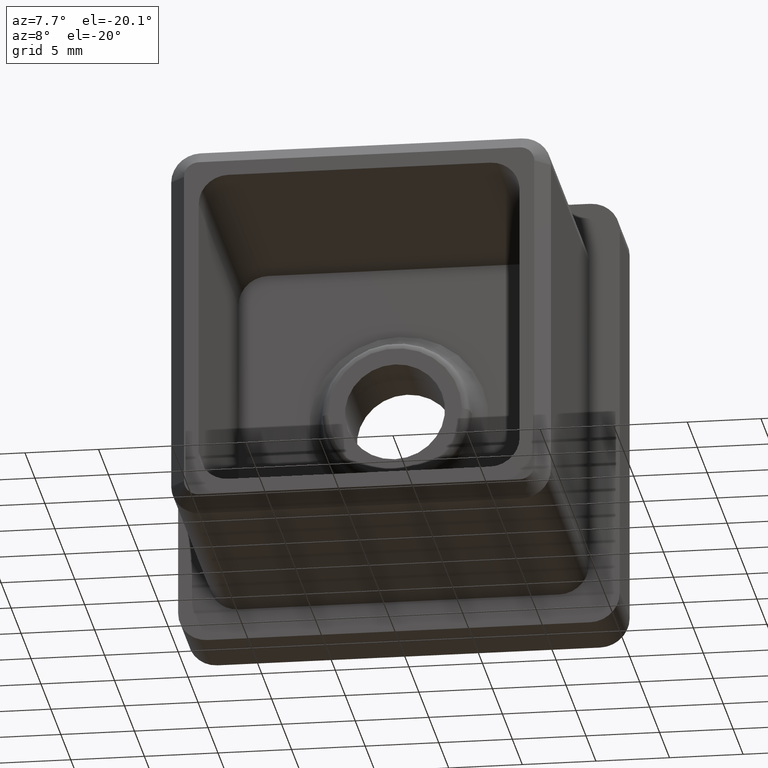
[diagram: clean part render]
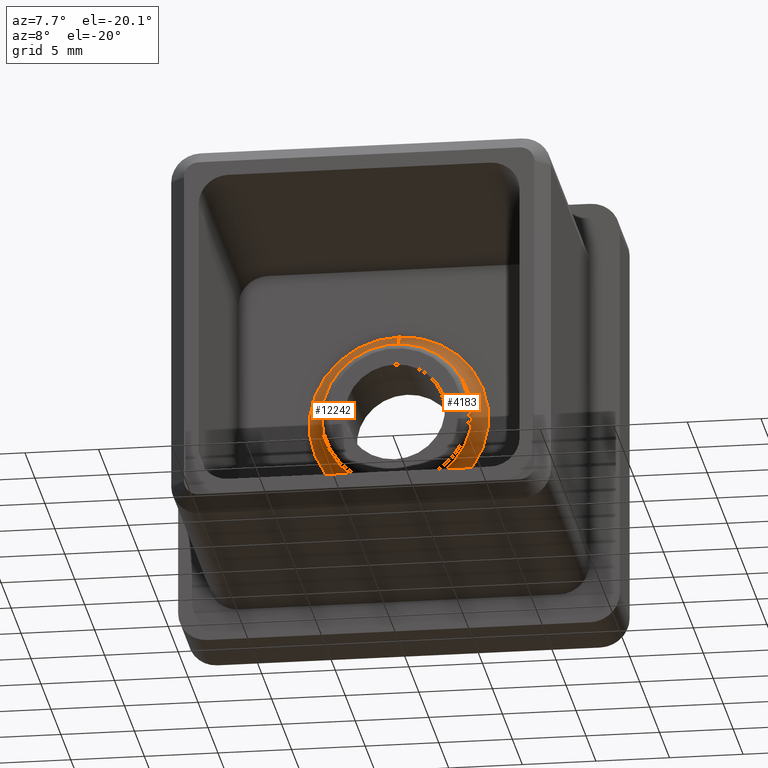
[diagram: same view with one multi-face feature highlighted, each face labeled with its STEP entity id]
A machine part, auxiliary view. The highlighted faces form ONE feature: a constant-radius fillet chain: 2 tangent blend faces with common blend radius 1 mm. The faces share edges in the B-rep.
Their STEP definitions:
[1] entity #12242 (Torus):
#125 = CARTESIAN_POINT ( 'NONE',  ( -5.095113802977517800, -0.9128442572523493000, 0.0000000000000000000 ) ) ;
#439 = VERTEX_POINT ( 'NONE', #12764 ) ;
#701 = DIRECTION ( 'NONE',  ( 0.0000000000000000000, 0.0000000000000000000, 1.000000000000000000 ) ) ;
#792 = CARTESIAN_POINT ( 'NONE',  ( 2.556028599677928600E-016, -1.000000000000000000, 1.984021111433010100E-016 ) ) ;
#971 = CIRCLE ( 'NONE', #17234, 1.000000000000000000 ) ;
#1405 = CARTESIAN_POINT ( 'NONE',  ( 2.556028599677928600E-016, 0.0000000000000000000, 6.091308501069263100 ) ) ;
#1695 = DIRECTION ( 'NONE',  ( 0.0000000000000000000, 1.000000000000000000, 0.0000000000000000000 ) ) ;
#2044 = ORIENTED_EDGE ( 'NONE', *, *, #7034, .F. ) ;
#2611 = EDGE_CURVE ( 'NONE', #439, #17305, #4148, .T. ) ;
#4148 = CIRCLE ( 'NONE', #17632, 1.000000000000000000 ) ;
#4405 = ORIENTED_EDGE ( 'NONE', *, *, #6536, .F. ) ;
#4693 = EDGE_LOOP ( 'NONE', ( #14168, #15588, #4405, #9205, #2044 ) ) ;
#4886 = CARTESIAN_POINT ( 'NONE',  ( 2.556028599677928600E-016, -1.000000000000000000, 6.091308501069263100 ) ) ;
#5355 = DIRECTION ( 'NONE',  ( 1.224646799147352500E-016, 0.0000000000000000000, -1.000000000000000000 ) ) ;
#5497 = DIRECTION ( 'NONE',  ( -1.000000000000000000, -1.276755198502429000E-016, 0.0000000000000000000 ) ) ;
#5630 = AXIS2_PLACEMENT_3D ( 'NONE', #8205, #18188, #17949 ) ;
#6041 = CIRCLE ( 'NONE', #5630, 5.095113802977517800 ) ;
#6536 = EDGE_CURVE ( 'NONE', #14853, #17305, #8317, .T. ) ;
#6843 = CARTESIAN_POINT ( 'NONE',  ( 1.001573005813146500E-015, -1.000000000000000000, -6.091308501069263100 ) ) ;
#7034 = EDGE_CURVE ( 'NONE', #10760, #10960, #971, .T. ) ;
#7374 = CARTESIAN_POINT ( 'NONE',  ( 9.405736733958655000E-016, -0.9128442572523486300, -5.095113802977517800 ) ) ;
#8205 = CARTESIAN_POINT ( 'NONE',  ( 2.556028599677928600E-016, -0.9128442572523486300, 1.984021111433010100E-016 ) ) ;
#8317 = CIRCLE ( 'NONE', #13823, 5.095113802977517800 ) ;
#9205 = ORIENTED_EDGE ( 'NONE', *, *, #11338, .F. ) ;
#10239 = CARTESIAN_POINT ( 'NONE',  ( 2.556028599677928600E-016, 0.0000000000000000000, 1.984021111433010100E-016 ) ) ;
#10702 = DIRECTION ( 'NONE',  ( 0.0000000000000000000, 0.0000000000000000000, 1.000000000000000000 ) ) ;
#10760 = VERTEX_POINT ( 'NONE', #1405 ) ;
#10766 = AXIS2_PLACEMENT_3D ( 'NONE', #792, #13407, #10702 ) ;
#10960 = VERTEX_POINT ( 'NONE', #14820 ) ;
#11148 = DIRECTION ( 'NONE',  ( 1.224646799147353500E-016, -1.000000000000000000, 0.0000000000000000000 ) ) ;
#11338 = EDGE_CURVE ( 'NONE', #10960, #14853, #6041, .T. ) ;
#12242 = ADVANCED_FACE ( 'NONE', ( #14779 ), #15496, .F. ) ;
#12764 = CARTESIAN_POINT ( 'NONE',  ( 1.001573005813146500E-015, 0.0000000000000000000, -6.091308501069263100 ) ) ;
#13407 = DIRECTION ( 'NONE',  ( 0.0000000000000000000, 1.000000000000000000, 0.0000000000000000000 ) ) ;
#13823 = AXIS2_PLACEMENT_3D ( 'NONE', #15335, #11148, #5497 ) ;
#13913 = DIRECTION ( 'NONE',  ( 1.000000000000000000, -0.0000000000000000000, 1.224646799147353200E-016 ) ) ;
#14168 = ORIENTED_EDGE ( 'NONE', *, *, #18444, .F. ) ;
#14718 = DIRECTION ( 'NONE',  ( -1.000000000000000000, 0.0000000000000000000, 0.0000000000000000000 ) ) ;
#14779 = FACE_OUTER_BOUND ( 'NONE', #4693, .T. ) ;
#14820 = CARTESIAN_POINT ( 'NONE',  ( 2.556028599677929600E-016, -0.9128442572523486300, 5.095113802977517800 ) ) ;
#14853 = VERTEX_POINT ( 'NONE', #125 ) ;
#15335 = CARTESIAN_POINT ( 'NONE',  ( 2.556028599677928600E-016, -0.9128442572523486300, 1.984021111433010100E-016 ) ) ;
#15496 = TOROIDAL_SURFACE ( 'NONE', #10766, 6.091308501069263100, 1.000000000000000000 ) ;
#15588 = ORIENTED_EDGE ( 'NONE', *, *, #2611, .T. ) ;
#15657 = CIRCLE ( 'NONE', #18154, 6.091308501069263100 ) ;
#15851 = DIRECTION ( 'NONE',  ( 0.0000000000000000000, 0.0000000000000000000, 1.000000000000000000 ) ) ;
#17234 = AXIS2_PLACEMENT_3D ( 'NONE', #4886, #14718, #701 ) ;
#17305 = VERTEX_POINT ( 'NONE', #7374 ) ;
#17632 = AXIS2_PLACEMENT_3D ( 'NONE', #6843, #13913, #5355 ) ;
#17949 = DIRECTION ( 'NONE',  ( -1.000000000000000000, -1.276755198502429000E-016, 0.0000000000000000000 ) ) ;
#18154 = AXIS2_PLACEMENT_3D ( 'NONE', #10239, #1695, #15851 ) ;
#18188 = DIRECTION ( 'NONE',  ( 1.224646799147353500E-016, -1.000000000000000000, 0.0000000000000000000 ) ) ;
#18444 = EDGE_CURVE ( 'NONE', #439, #10760, #15657, .T. ) ;
[2] entity #4183 (Torus):
#439 = VERTEX_POINT ( 'NONE', #12764 ) ;
#551 = AXIS2_PLACEMENT_3D ( 'NONE', #7638, #3384, #4832 ) ;
#701 = DIRECTION ( 'NONE',  ( 0.0000000000000000000, 0.0000000000000000000, 1.000000000000000000 ) ) ;
#971 = CIRCLE ( 'NONE', #17234, 1.000000000000000000 ) ;
#1405 = CARTESIAN_POINT ( 'NONE',  ( 2.556028599677928600E-016, 0.0000000000000000000, 6.091308501069263100 ) ) ;
#1407 = ORIENTED_EDGE ( 'NONE', *, *, #2611, .F. ) ;
#1891 = EDGE_CURVE ( 'NONE', #10760, #439, #8811, .T. ) ;
#2289 = DIRECTION ( 'NONE',  ( -1.000000000000000000, -1.276755198502429000E-016, 0.0000000000000000000 ) ) ;
#2611 = EDGE_CURVE ( 'NONE', #439, #17305, #4148, .T. ) ;
#2674 = ORIENTED_EDGE ( 'NONE', *, *, #1891, .F. ) ;
#3384 = DIRECTION ( 'NONE',  ( 1.224646799147353500E-016, -1.000000000000000000, 0.0000000000000000000 ) ) ;
#4148 = CIRCLE ( 'NONE', #17632, 1.000000000000000000 ) ;
#4183 = ADVANCED_FACE ( 'NONE', ( #14062 ), #7364, .F. ) ;
#4832 = DIRECTION ( 'NONE',  ( -1.000000000000000000, -1.276755198502429000E-016, 0.0000000000000000000 ) ) ;
#4886 = CARTESIAN_POINT ( 'NONE',  ( 2.556028599677928600E-016, -1.000000000000000000, 6.091308501069263100 ) ) ;
#5355 = DIRECTION ( 'NONE',  ( 1.224646799147352500E-016, 0.0000000000000000000, -1.000000000000000000 ) ) ;
#5575 = CARTESIAN_POINT ( 'NONE',  ( 5.095113802977517800, -0.9128442572523479700, 6.239714810107915300E-016 ) ) ;
#6189 = AXIS2_PLACEMENT_3D ( 'NONE', #9663, #15177, #12571 ) ;
#6201 = EDGE_LOOP ( 'NONE', ( #1407, #2674, #14777, #10195, #14018 ) ) ;
#6316 = DIRECTION ( 'NONE',  ( 0.0000000000000000000, 1.000000000000000000, 0.0000000000000000000 ) ) ;
#6407 = EDGE_CURVE ( 'NONE', #17128, #10960, #13941, .T. ) ;
#6843 = CARTESIAN_POINT ( 'NONE',  ( 1.001573005813146500E-015, -1.000000000000000000, -6.091308501069263100 ) ) ;
#7034 = EDGE_CURVE ( 'NONE', #10760, #10960, #971, .T. ) ;
#7364 = TOROIDAL_SURFACE ( 'NONE', #17517, 6.091308501069263100, 1.000000000000000000 ) ;
#7374 = CARTESIAN_POINT ( 'NONE',  ( 9.405736733958655000E-016, -0.9128442572523486300, -5.095113802977517800 ) ) ;
#7415 = CIRCLE ( 'NONE', #551, 5.095113802977517800 ) ;
#7638 = CARTESIAN_POINT ( 'NONE',  ( 2.556028599677928600E-016, -0.9128442572523486300, 1.984021111433010100E-016 ) ) ;
#8588 = EDGE_CURVE ( 'NONE', #17305, #17128, #7415, .T. ) ;
#8811 = CIRCLE ( 'NONE', #6189, 6.091308501069263100 ) ;
#9663 = CARTESIAN_POINT ( 'NONE',  ( 2.556028599677928600E-016, 0.0000000000000000000, 1.984021111433010100E-016 ) ) ;
#10195 = ORIENTED_EDGE ( 'NONE', *, *, #6407, .F. ) ;
#10760 = VERTEX_POINT ( 'NONE', #1405 ) ;
#10788 = DIRECTION ( 'NONE',  ( 0.0000000000000000000, 0.0000000000000000000, 1.000000000000000000 ) ) ;
#10845 = CARTESIAN_POINT ( 'NONE',  ( 2.556028599677928600E-016, -1.000000000000000000, 1.984021111433010100E-016 ) ) ;
#10960 = VERTEX_POINT ( 'NONE', #14820 ) ;
#12172 = CARTESIAN_POINT ( 'NONE',  ( 2.556028599677928600E-016, -0.9128442572523486300, 1.984021111433010100E-016 ) ) ;
#12571 = DIRECTION ( 'NONE',  ( 0.0000000000000000000, 0.0000000000000000000, 1.000000000000000000 ) ) ;
#12764 = CARTESIAN_POINT ( 'NONE',  ( 1.001573005813146500E-015, 0.0000000000000000000, -6.091308501069263100 ) ) ;
#13729 = DIRECTION ( 'NONE',  ( 1.224646799147353500E-016, -1.000000000000000000, 0.0000000000000000000 ) ) ;
#13913 = DIRECTION ( 'NONE',  ( 1.000000000000000000, -0.0000000000000000000, 1.224646799147353200E-016 ) ) ;
#13941 = CIRCLE ( 'NONE', #16999, 5.095113802977517800 ) ;
#14018 = ORIENTED_EDGE ( 'NONE', *, *, #8588, .F. ) ;
#14062 = FACE_OUTER_BOUND ( 'NONE', #6201, .T. ) ;
#14718 = DIRECTION ( 'NONE',  ( -1.000000000000000000, 0.0000000000000000000, 0.0000000000000000000 ) ) ;
#14777 = ORIENTED_EDGE ( 'NONE', *, *, #7034, .T. ) ;
#14820 = CARTESIAN_POINT ( 'NONE',  ( 2.556028599677929600E-016, -0.9128442572523486300, 5.095113802977517800 ) ) ;
#15177 = DIRECTION ( 'NONE',  ( 0.0000000000000000000, 1.000000000000000000, 0.0000000000000000000 ) ) ;
#16999 = AXIS2_PLACEMENT_3D ( 'NONE', #12172, #13729, #2289 ) ;
#17128 = VERTEX_POINT ( 'NONE', #5575 ) ;
#17234 = AXIS2_PLACEMENT_3D ( 'NONE', #4886, #14718, #701 ) ;
#17305 = VERTEX_POINT ( 'NONE', #7374 ) ;
#17517 = AXIS2_PLACEMENT_3D ( 'NONE', #10845, #6316, #10788 ) ;
#17632 = AXIS2_PLACEMENT_3D ( 'NONE', #6843, #13913, #5355 ) ;